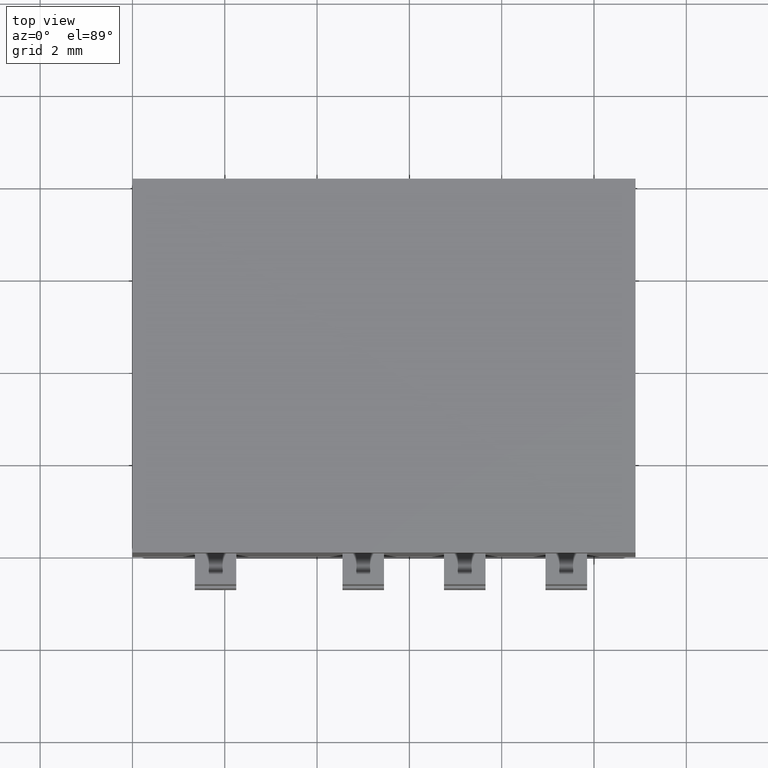
[diagram: clean part render]
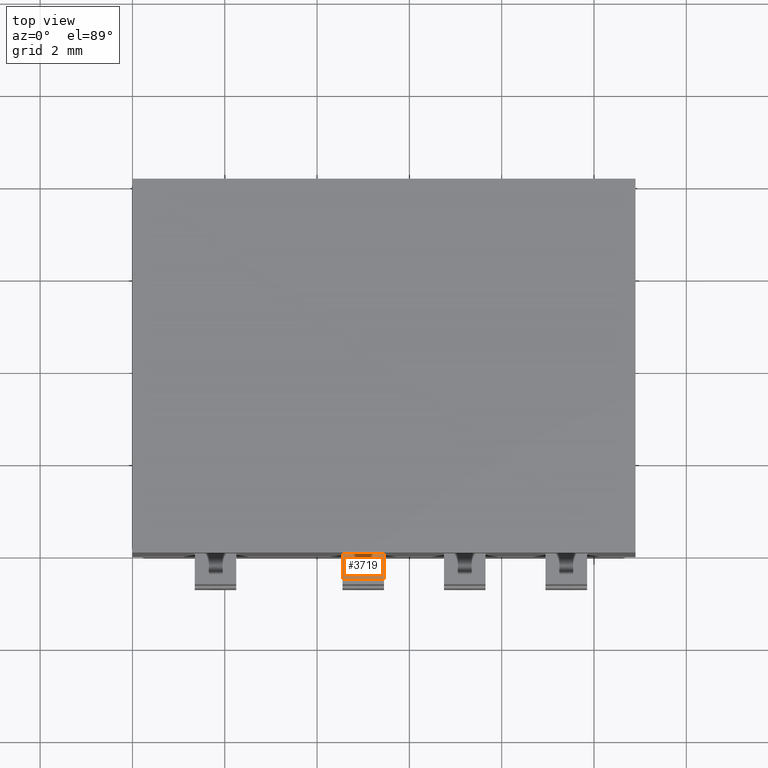
[diagram: same view with one face highlighted and labeled with its STEP entity id]
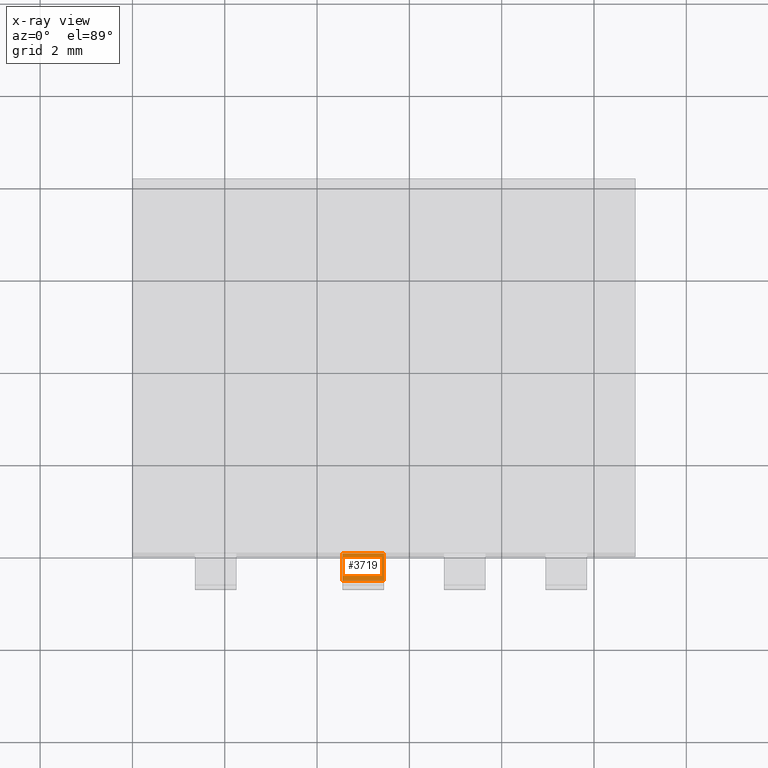
[diagram: x-ray of the same camera — body ghosted, the highlighted face saturated]
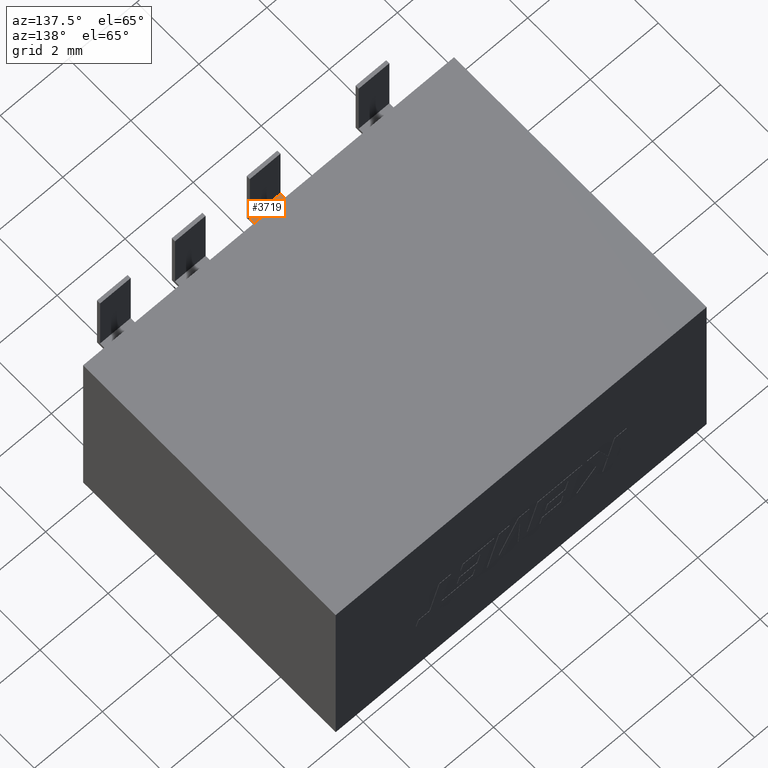
[diagram: same view with one face highlighted and labeled with its STEP entity id]
A machine part, top view. The second image highlights one B-rep face of the part: STEP entity #3719.
The next image is the same camera in x-ray: the body ghosted, the highlighted face saturated — about 5% of this face is hidden behind the body in this view.
A second angle (auxiliary view) of the same face is appended — the face is thin or edge-on in the first view.
In plain terms, the highlighted planar face has unit normal (-0, 0, 1).
Its self-contained STEP definition (entity closure, byte-faithful):
#319 = DIRECTION ( 'NONE',  ( -0.0000000000000000000, 0.0000000000000000000, 1.000000000000000000 ) ) ;
#390 = CARTESIAN_POINT ( 'NONE',  ( 4.549999999999999800, 2.277843046414076900E-016, -1.350000000000000100 ) ) ;
#575 = CARTESIAN_POINT ( 'NONE',  ( 4.549999999999999800, 2.277843046414076900E-016, -1.350000000000000100 ) ) ;
#587 = EDGE_CURVE ( 'NONE', #2985, #1439, #2163, .T. ) ;
#611 = CARTESIAN_POINT ( 'NONE',  ( 4.549999999999999800, -0.5999999999999998700, -1.350000000000000100 ) ) ;
#802 = EDGE_CURVE ( 'NONE', #1505, #1439, #3710, .T. ) ;
#918 = DIRECTION ( 'NONE',  ( 1.000000000000000000, 0.0000000000000000000, 0.0000000000000000000 ) ) ;
#1068 = EDGE_LOOP ( 'NONE', ( #1123, #1381, #3921, #1532 ) ) ;
#1123 = ORIENTED_EDGE ( 'NONE', *, *, #802, .T. ) ;
#1176 = DIRECTION ( 'NONE',  ( 1.000000000000000000, 0.0000000000000000000, 0.0000000000000000000 ) ) ;
#1381 = ORIENTED_EDGE ( 'NONE', *, *, #587, .F. ) ;
#1429 = LINE ( 'NONE', #390, #1850 ) ;
#1439 = VERTEX_POINT ( 'NONE', #2634 ) ;
#1505 = VERTEX_POINT ( 'NONE', #2282 ) ;
#1532 = ORIENTED_EDGE ( 'NONE', *, *, #3081, .T. ) ;
#1539 = DIRECTION ( 'NONE',  ( 0.0000000000000000000, -1.000000000000000000, 0.0000000000000000000 ) ) ;
#1546 = LINE ( 'NONE', #575, #2839 ) ;
#1580 = VERTEX_POINT ( 'NONE', #2033 ) ;
#1780 = CARTESIAN_POINT ( 'NONE',  ( 5.450000000000000200, 2.277843046414076900E-016, -1.350000000000000100 ) ) ;
#1850 = VECTOR ( 'NONE', #3131, 1000.000000000000000 ) ;
#1981 = VECTOR ( 'NONE', #918, 1000.000000000000000 ) ;
#2033 = CARTESIAN_POINT ( 'NONE',  ( 4.549999999999999800, 2.277843046414076900E-016, -1.350000000000000100 ) ) ;
#2109 = VECTOR ( 'NONE', #1539, 1000.000000000000000 ) ;
#2163 = LINE ( 'NONE', #4345, #2109 ) ;
#2282 = CARTESIAN_POINT ( 'NONE',  ( 4.549999999999999800, -0.5999999999999998700, -1.350000000000000100 ) ) ;
#2360 = CARTESIAN_POINT ( 'NONE',  ( 4.549999999999999800, 2.277843046414076900E-016, -1.350000000000000100 ) ) ;
#2379 = PLANE ( 'NONE',  #2645 ) ;
#2634 = CARTESIAN_POINT ( 'NONE',  ( 5.450000000000000200, -0.5999999999999998700, -1.350000000000000100 ) ) ;
#2645 = AXIS2_PLACEMENT_3D ( 'NONE', #2360, #319, #4156 ) ;
#2663 = EDGE_CURVE ( 'NONE', #1580, #2985, #1546, .T. ) ;
#2839 = VECTOR ( 'NONE', #1176, 1000.000000000000000 ) ;
#2985 = VERTEX_POINT ( 'NONE', #1780 ) ;
#3081 = EDGE_CURVE ( 'NONE', #1580, #1505, #1429, .T. ) ;
#3131 = DIRECTION ( 'NONE',  ( 0.0000000000000000000, -1.000000000000000000, 0.0000000000000000000 ) ) ;
#3710 = LINE ( 'NONE', #611, #1981 ) ;
#3719 = ADVANCED_FACE ( 'NONE', ( #4006 ), #2379, .T. ) ;
#3921 = ORIENTED_EDGE ( 'NONE', *, *, #2663, .F. ) ;
#4006 = FACE_OUTER_BOUND ( 'NONE', #1068, .T. ) ;
#4156 = DIRECTION ( 'NONE',  ( 1.000000000000000000, 0.0000000000000000000, 0.0000000000000000000 ) ) ;
#4345 = CARTESIAN_POINT ( 'NONE',  ( 5.450000000000000200, 2.277843046414076900E-016, -1.350000000000000100 ) ) ;